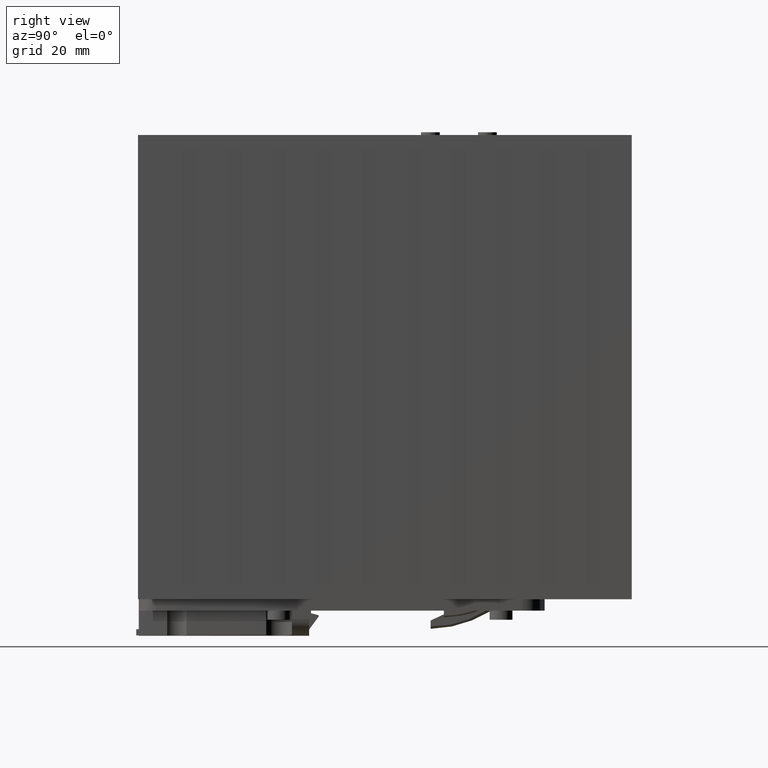
[diagram: clean part render]
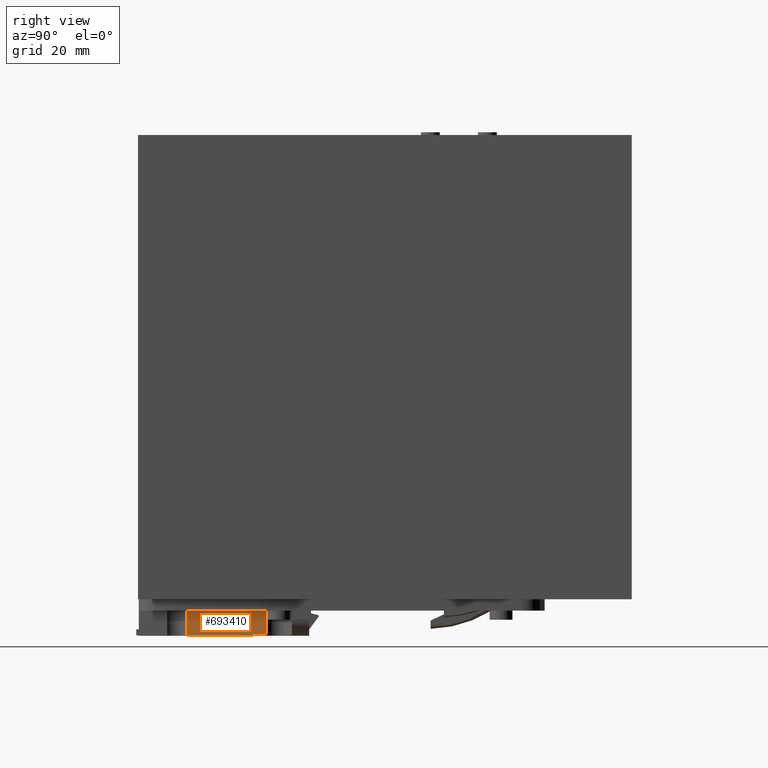
[diagram: same view with one face highlighted and labeled with its STEP entity id]
A machine part, right view. The second image highlights one B-rep face of the part: STEP entity #693410.
In plain terms, the highlighted cylindrical surface (partial cylindrical patch) has radius 401.5 mm, axis along (0, 0, -1).
Its self-contained STEP definition (entity closure, byte-faithful):
#680010=CARTESIAN_POINT('',(17.4420795676832,20.3000000000002,
84.1510932410561));
#680020=DIRECTION('',(1.37468202359202E-5,1.32377063662335E-39,
0.999999999905512));
#680030=DIRECTION('',(0.999999999905512,-9.09881806515498E-45,
-1.37468202359202E-5));
#680040=AXIS2_PLACEMENT_3D('',#680010,#680020,#680030);
#680050=CYLINDRICAL_SURFACE('',#680040,30.);
#680510=CARTESIAN_POINT('',(20.2456504777329,-9.56875420484524,
116.426398758836));
#680520=VERTEX_POINT('',#680510);
#680550=CARTESIAN_POINT('',(-380.257865407458,-3.0999999999999,
88.156560351086));
#680560=DIRECTION('',(9.09881891095558E-45,-1.,1.32377063662335E-39));
#680570=DIRECTION('',(-1.37468202359202E-5,-1.32377063662335E-39,
-0.999999999905512));
#680580=AXIS2_PLACEMENT_3D('',#680550,#680560,#680570);
#680590=CYLINDRICAL_SURFACE('',#680580,401.5);
#680600=CARTESIAN_POINT('',(21.1765340989952,-9.46667609516908,
95.4141696608264));
#680610=CARTESIAN_POINT('',(21.1448481860299,-9.47065419017257,
97.1667874859514));
#680620=CARTESIAN_POINT('',(21.1016844967925,-9.47602742559005,
98.9191954383777));
#680630=CARTESIAN_POINT('',(21.0470473730936,-9.48264334216385,
100.671230869743));
#680640=CARTESIAN_POINT('',(20.9924096719774,-9.48925932865614,
102.423284817012));
#680650=CARTESIAN_POINT('',(20.9262957907096,-9.49711826358038,
104.175037623851));
#680660=CARTESIAN_POINT('',(20.8487135173032,-9.50598739389538,
105.926263310735));
#680670=CARTESIAN_POINT('',(20.7711308177536,-9.51485657292667,
107.677498616736));
#680680=CARTESIAN_POINT('',(20.682081957681,-9.52473561714494,
109.42816520607));
#680690=CARTESIAN_POINT('',(20.5815739919311,-9.53531309531287,
111.178155039189));
#680700=CARTESIAN_POINT('',(20.481063988738,-9.54589078790172,
112.928180347156));
#680710=CARTESIAN_POINT('',(20.3690858547188,-9.557167767417,
114.677669185134));
#680720=CARTESIAN_POINT('',(20.2456504777328,-9.56875420484555,
116.426398758839));
#680730=B_SPLINE_CURVE_WITH_KNOTS('',3,(#680600,#680610,#680620,#680630,
#680640,#680650,#680660,#680670,#680680,#680690,#680700,#680710,#680720)
,.UNSPECIFIED.,.F.,.F.,(4,3,3,3,4),(0.,5.25871798684735,10.5175815892292
,15.776382571854,21.035509994096),.UNSPECIFIED.);
#680740=SURFACE_CURVE('',#680730,(#680050,#680590),.CURVE_3D.);
#680750=CARTESIAN_POINT('',(21.1765340989955,-9.4666760951657,
95.4141696608265));
#680760=VERTEX_POINT('',#680750);
#680770=EDGE_CURVE('',#680760,#680520,#680740,.T.);
#682110=CARTESIAN_POINT('',(21.1765340989956,-3.09999999999985,
95.4141696608265));
#682120=VERTEX_POINT('',#682110);
#682170=CARTESIAN_POINT('',(-380.257865407458,-3.09999999999985,
88.156560351086));
#682180=DIRECTION('',(9.09881891095558E-45,-1.,1.32377063662335E-39));
#682190=DIRECTION('',(-1.37468202359202E-5,-1.32377063662335E-39,
-0.999999999905512));
#682200=AXIS2_PLACEMENT_3D('',#682170,#682180,#682190);
#682210=CIRCLE('',#682200,401.5);
#682220=CARTESIAN_POINT('',(20.2456504777331,-3.09999999999985,
116.426398758837));
#682230=VERTEX_POINT('',#682220);
#682240=EDGE_CURVE('',#682120,#682230,#682210,.T.);
#693200=CARTESIAN_POINT('',(-380.257865407458,-3.0999999999999,
88.156560351086));
#693210=DIRECTION('',(9.09881891095558E-45,-1.,1.32377063662335E-39));
#693220=DIRECTION('',(-1.37468202359202E-5,-1.32377063662335E-39,
-0.999999999905512));
#693230=AXIS2_PLACEMENT_3D('',#693200,#693210,#693220);
#693240=CYLINDRICAL_SURFACE('',#693230,401.5);
#693250=ORIENTED_EDGE('',*,*,#680770,.F.);
#693260=CARTESIAN_POINT('',(20.2456504777329,-3.0999999999999,
116.426398758838));
#693270=DIRECTION('',(9.09881891095558E-45,-1.,1.32377063662335E-39));
#693280=VECTOR('',#693270,1.);
#693290=LINE('',#693260,#693280);
#693300=EDGE_CURVE('',#682230,#680520,#693290,.T.);
#693310=ORIENTED_EDGE('',*,*,#693300,.T.);
#693320=ORIENTED_EDGE('',*,*,#682240,.T.);
#693330=CARTESIAN_POINT('',(21.1765340989956,-3.09999999999985,
95.4141696608265));
#693340=DIRECTION('',(9.09881891095558E-45,-1.,1.32377063662335E-39));
#693350=VECTOR('',#693340,1.);
#693360=LINE('',#693330,#693350);
#693370=EDGE_CURVE('',#682120,#680760,#693360,.T.);
#693380=ORIENTED_EDGE('',*,*,#693370,.F.);
#693390=EDGE_LOOP('',(#693380,#693320,#693310,#693250));
#693400=FACE_OUTER_BOUND('',#693390,.T.);
#693410=ADVANCED_FACE('',(#693400),#693240,.T.);